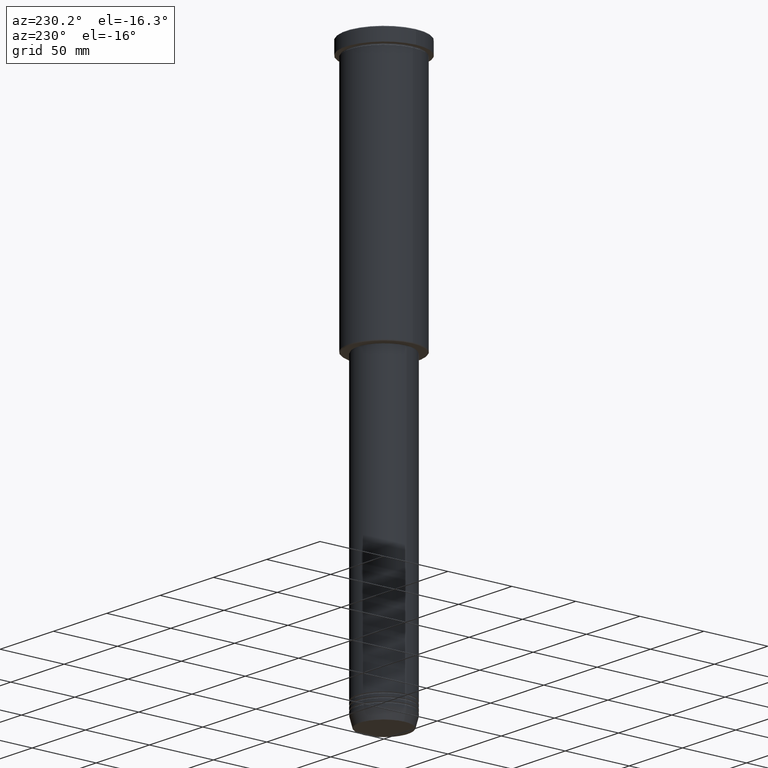
[diagram: clean part render]
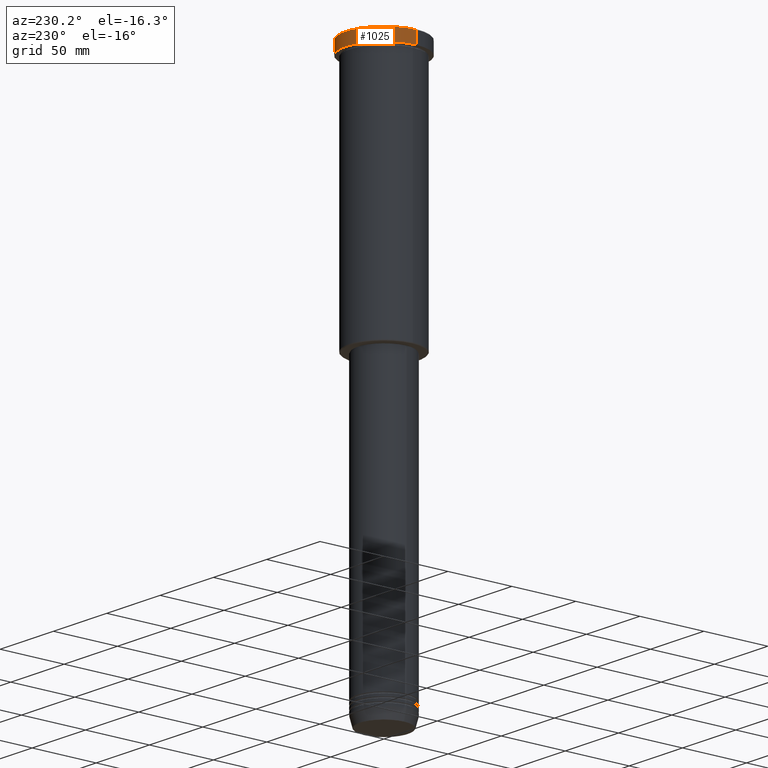
[diagram: same view with one face highlighted and labeled with its STEP entity id]
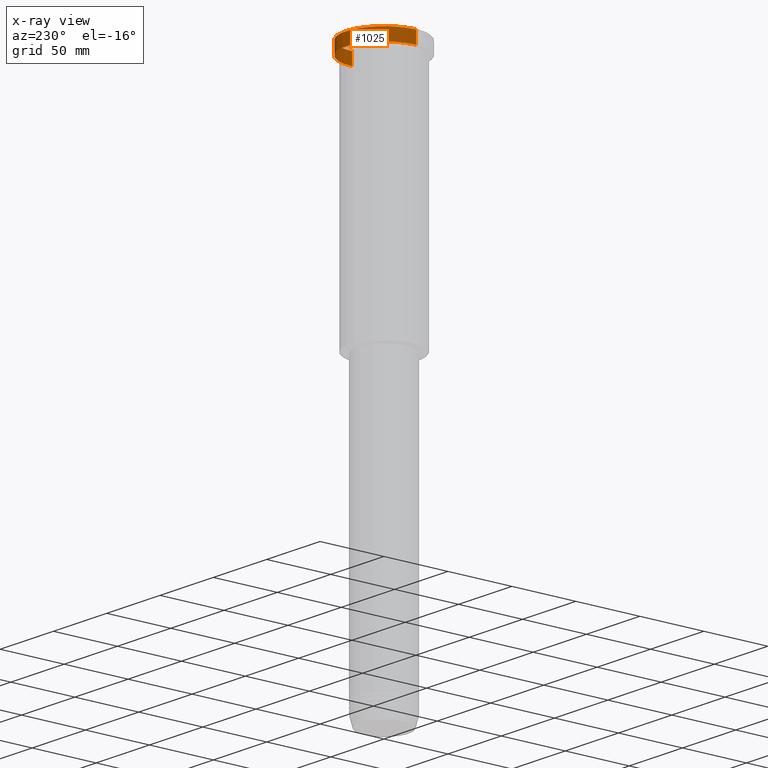
[diagram: x-ray of the same camera — body ghosted, the highlighted face saturated]
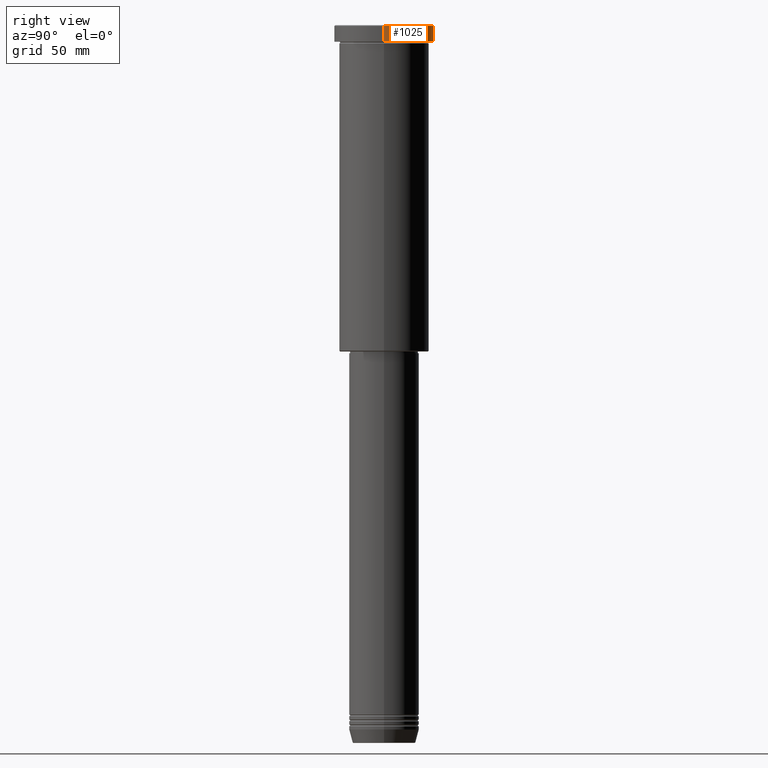
[diagram: same view with one face highlighted and labeled with its STEP entity id]
A machine part, auxiliary view. The second image highlights one B-rep face of the part: STEP entity #1025.
The next image is the same camera in x-ray: the body ghosted, the highlighted face saturated — about 0% of this face is hidden behind the body in this view.
A second angle (right view) of the same face is appended — the face is thin or edge-on in the first view.
In plain terms, the highlighted cylindrical surface (partial cylindrical patch) has radius 30 mm, axis along (-0, -0, 1).
Its self-contained STEP definition (entity closure, byte-faithful):
#22 = VECTOR ( 'NONE', #151, 1000.000000000000000 ) ;
#138 = DIRECTION ( 'NONE',  ( -0.000000000000000000, -0.000000000000000000, 1.000000000000000000 ) ) ;
#151 = DIRECTION ( 'NONE',  ( -0.000000000000000000, -0.000000000000000000, 1.000000000000000000 ) ) ;
#156 = VECTOR ( 'NONE', #701, 1000.000000000000000 ) ;
#282 = EDGE_CURVE ( 'NONE', #477, #1114, #700, .T. ) ;
#283 = CARTESIAN_POINT ( 'NONE',  ( 0.000000000000000000, 0.000000000000000000, -0.5000000000000073275 ) ) ;
#313 = EDGE_CURVE ( 'NONE', #472, #477, #685, .T. ) ;
#315 = CARTESIAN_POINT ( 'NONE',  ( 30.00000000000000000, 0.000000000000000000, -9.999999999999992895 ) ) ;
#348 = CARTESIAN_POINT ( 'NONE',  ( 0.000000000000000000, 0.000000000000000000, -9.999999999999992895 ) ) ;
#359 = ORIENTED_EDGE ( 'NONE', *, *, #282, .T. ) ;
#381 = CARTESIAN_POINT ( 'NONE',  ( 0.000000000000000000, 0.000000000000000000, 0.000000000000000000 ) ) ;
#433 = CARTESIAN_POINT ( 'NONE',  ( 30.00000000000000000, 0.000000000000000000, 0.000000000000000000 ) ) ;
#441 = VERTEX_POINT ( 'NONE', #1127 ) ;
#472 = VERTEX_POINT ( 'NONE', #315 ) ;
#477 = VERTEX_POINT ( 'NONE', #488 ) ;
#488 = CARTESIAN_POINT ( 'NONE',  ( -30.00000000000000000, 3.673940397442059178E-15, -9.999999999999992895 ) ) ;
#496 = AXIS2_PLACEMENT_3D ( 'NONE', #348, #138, #509 ) ;
#498 = ORIENTED_EDGE ( 'NONE', *, *, #313, .T. ) ;
#509 = DIRECTION ( 'NONE',  ( 1.000000000000000000, 0.000000000000000000, 0.000000000000000000 ) ) ;
#577 = CIRCLE ( 'NONE', #635, 30.00000000000000000 ) ;
#635 = AXIS2_PLACEMENT_3D ( 'NONE', #283, #1105, #643 ) ;
#643 = DIRECTION ( 'NONE',  ( 1.000000000000000000, 0.000000000000000000, 0.000000000000000000 ) ) ;
#644 = EDGE_CURVE ( 'NONE', #472, #441, #798, .T. ) ;
#654 = DIRECTION ( 'NONE',  ( -0.000000000000000000, -0.000000000000000000, 1.000000000000000000 ) ) ;
#659 = CYLINDRICAL_SURFACE ( 'NONE', #837, 30.00000000000000000 ) ;
#685 = CIRCLE ( 'NONE', #496, 30.00000000000000000 ) ;
#700 = LINE ( 'NONE', #965, #22 ) ;
#701 = DIRECTION ( 'NONE',  ( -0.000000000000000000, -0.000000000000000000, 1.000000000000000000 ) ) ;
#729 = FACE_OUTER_BOUND ( 'NONE', #830, .T. ) ;
#798 = LINE ( 'NONE', #433, #156 ) ;
#830 = EDGE_LOOP ( 'NONE', ( #498, #359, #862, #1075 ) ) ;
#837 = AXIS2_PLACEMENT_3D ( 'NONE', #381, #654, #1095 ) ;
#858 = EDGE_CURVE ( 'NONE', #1114, #441, #577, .T. ) ;
#862 = ORIENTED_EDGE ( 'NONE', *, *, #858, .T. ) ;
#965 = CARTESIAN_POINT ( 'NONE',  ( -30.00000000000000000, 3.673940397442059178E-15, 0.000000000000000000 ) ) ;
#1025 = ADVANCED_FACE ( 'NONE', ( #729 ), #659, .T. ) ;
#1037 = CARTESIAN_POINT ( 'NONE',  ( -30.00000000000000000, 3.673940397442059178E-15, -0.5000000000000073275 ) ) ;
#1075 = ORIENTED_EDGE ( 'NONE', *, *, #644, .F. ) ;
#1095 = DIRECTION ( 'NONE',  ( 1.000000000000000000, 0.000000000000000000, 0.000000000000000000 ) ) ;
#1105 = DIRECTION ( 'NONE',  ( 0.000000000000000000, 0.000000000000000000, -1.000000000000000000 ) ) ;
#1114 = VERTEX_POINT ( 'NONE', #1037 ) ;
#1127 = CARTESIAN_POINT ( 'NONE',  ( 30.00000000000000000, 0.000000000000000000, -0.5000000000000073275 ) ) ;